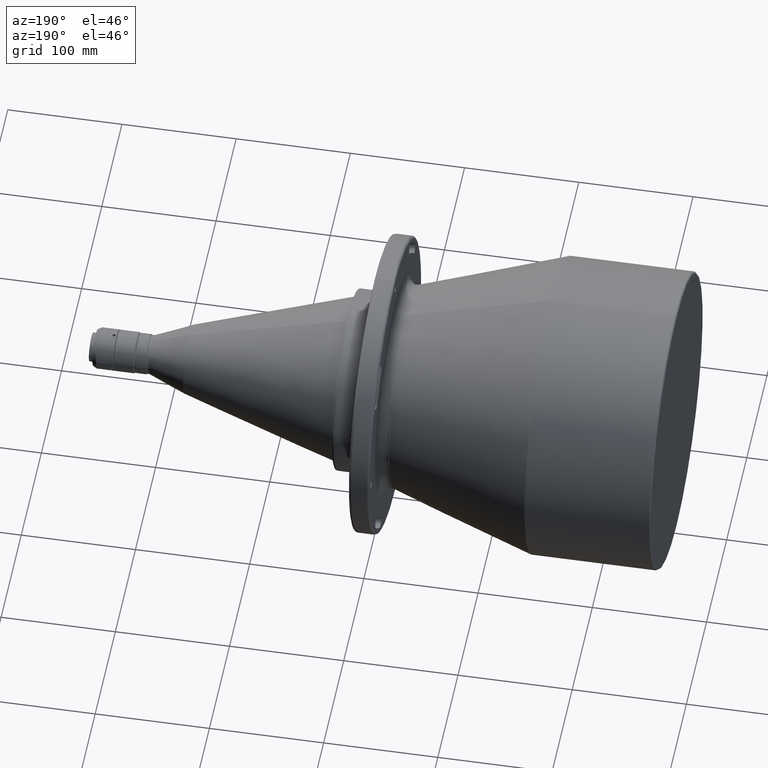
[diagram: clean part render]
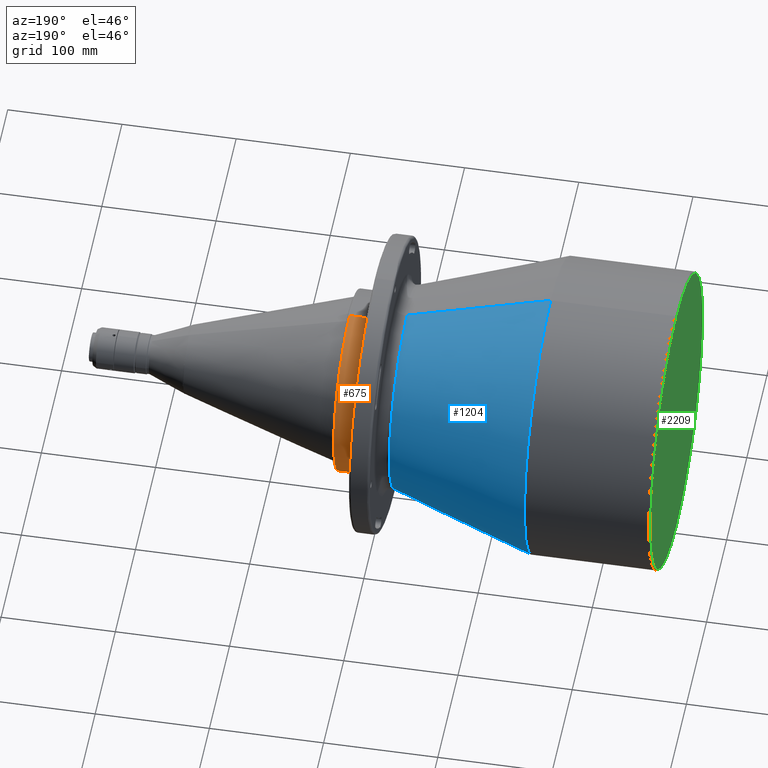
[diagram: same view with three faces highlighted in distinct colors, each labeled with its STEP entity id]
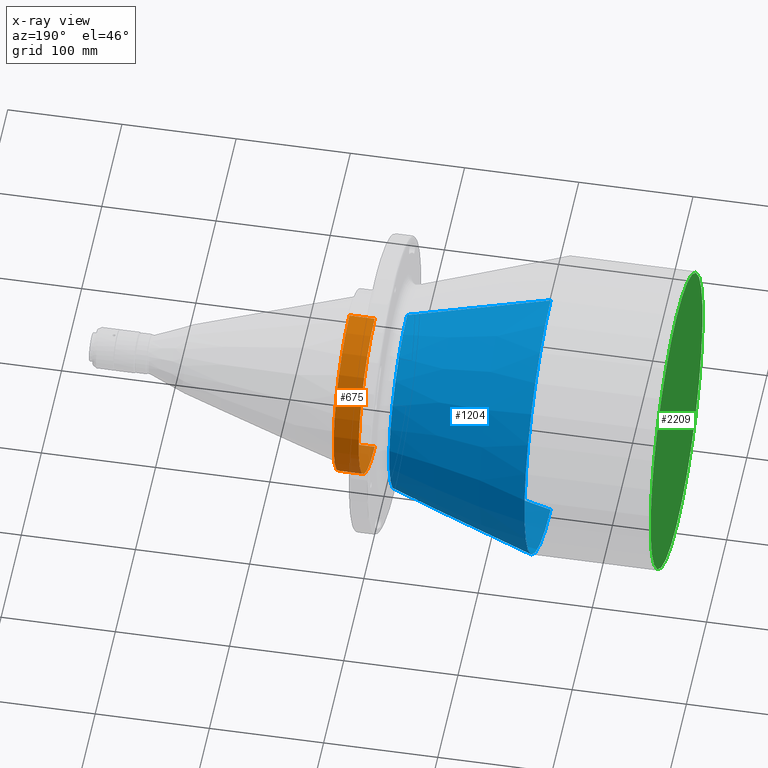
[diagram: x-ray of the same camera — body ghosted, the three highlighted faces saturated]
A machine part, auxiliary view with three faces highlighted in distinct colors.
The next image is the same camera in x-ray (body ghosted, the three faces saturated) — at least one of them is partly hidden behind the body in this view.
Their STEP definitions:

[orange] entity #675 — the highlighted cylindrical surface (partial cylindrical patch) has radius 79.5 mm, axis along (-1, 0, 0).
#181 = EDGE_CURVE ( 'NONE', #2694, #434, #974, .T. ) ;
#204 = CARTESIAN_POINT ( 'NONE',  ( 30.10000000000000100, 9.735942053221458500E-015, -79.50000000000000000 ) ) ;
#213 = DIRECTION ( 'NONE',  ( -1.000000000000000000, 0.0000000000000000000, 0.0000000000000000000 ) ) ;
#405 = CIRCLE ( 'NONE', #926, 79.50000000000000000 ) ;
#434 = VERTEX_POINT ( 'NONE', #2633 ) ;
#476 = ORIENTED_EDGE ( 'NONE', *, *, #597, .T. ) ;
#572 = EDGE_LOOP ( 'NONE', ( #989, #476, #1736, #714 ) ) ;
#597 = EDGE_CURVE ( 'NONE', #2694, #1147, #1129, .T. ) ;
#675 = ADVANCED_FACE ( 'NONE', ( #2018 ), #1867, .T. ) ;
#714 = ORIENTED_EDGE ( 'NONE', *, *, #2158, .F. ) ;
#861 = CARTESIAN_POINT ( 'NONE',  ( 30.10000000000000100, 0.0000000000000000000, 0.0000000000000000000 ) ) ;
#926 = AXIS2_PLACEMENT_3D ( 'NONE', #2405, #2670, #2706 ) ;
#937 = CARTESIAN_POINT ( 'NONE',  ( 30.10000000000000100, 0.0000000000000000000, 79.50000000000000000 ) ) ;
#974 = CIRCLE ( 'NONE', #2933, 79.49999999999998600 ) ;
#989 = ORIENTED_EDGE ( 'NONE', *, *, #181, .F. ) ;
#1129 = LINE ( 'NONE', #204, #1679 ) ;
#1147 = VERTEX_POINT ( 'NONE', #1864 ) ;
#1276 = EDGE_CURVE ( 'NONE', #1147, #2636, #405, .T. ) ;
#1375 = DIRECTION ( 'NONE',  ( -1.000000000000000000, 0.0000000000000000000, 0.0000000000000000000 ) ) ;
#1582 = DIRECTION ( 'NONE',  ( 0.0000000000000000000, 0.0000000000000000000, 1.000000000000000000 ) ) ;
#1644 = VECTOR ( 'NONE', #213, 1000.000000000000000 ) ;
#1679 = VECTOR ( 'NONE', #2894, 1000.000000000000000 ) ;
#1736 = ORIENTED_EDGE ( 'NONE', *, *, #1276, .T. ) ;
#1820 = CARTESIAN_POINT ( 'NONE',  ( 8.099999999999996100, 0.0000000000000000000, 79.50000000000000000 ) ) ;
#1864 = CARTESIAN_POINT ( 'NONE',  ( 8.099999999999996100, 9.735942053221458500E-015, -79.50000000000000000 ) ) ;
#1867 = CYLINDRICAL_SURFACE ( 'NONE', #2310, 79.50000000000000000 ) ;
#1983 = DIRECTION ( 'NONE',  ( 1.000000000000000000, -0.0000000000000000000, -0.0000000000000000000 ) ) ;
#2018 = FACE_OUTER_BOUND ( 'NONE', #572, .T. ) ;
#2158 = EDGE_CURVE ( 'NONE', #434, #2636, #2945, .T. ) ;
#2310 = AXIS2_PLACEMENT_3D ( 'NONE', #861, #1375, #1582 ) ;
#2405 = CARTESIAN_POINT ( 'NONE',  ( 8.099999999999996100, 0.0000000000000000000, 0.0000000000000000000 ) ) ;
#2526 = DIRECTION ( 'NONE',  ( -1.745633686517542100E-016, 8.881784197001252300E-016, 1.000000000000000000 ) ) ;
#2633 = CARTESIAN_POINT ( 'NONE',  ( 30.10000000000001600, -3.569296730042138000E-009, 79.50000000007962300 ) ) ;
#2636 = VERTEX_POINT ( 'NONE', #1820 ) ;
#2670 = DIRECTION ( 'NONE',  ( 1.000000000000000000, -0.0000000000000000000, -0.0000000000000000000 ) ) ;
#2694 = VERTEX_POINT ( 'NONE', #3178 ) ;
#2706 = DIRECTION ( 'NONE',  ( 0.0000000000000000000, 0.0000000000000000000, 1.000000000000000000 ) ) ;
#2894 = DIRECTION ( 'NONE',  ( -1.000000000000000000, 0.0000000000000000000, 0.0000000000000000000 ) ) ;
#2933 = AXIS2_PLACEMENT_3D ( 'NONE', #3022, #1983, #2526 ) ;
#2945 = LINE ( 'NONE', #937, #1644 ) ;
#3022 = CARTESIAN_POINT ( 'NONE',  ( 30.10000000000001600, 0.0000000000000000000, 0.0000000000000000000 ) ) ;
#3178 = CARTESIAN_POINT ( 'NONE',  ( 30.10000000000001600, -2.445858385045323700E-008, -79.50000000007963800 ) ) ;

[blue] entity #1204 — the highlighted conical surface has half-angle 18 deg.
#10 = ORIENTED_EDGE ( 'NONE', *, *, #281, .F. ) ;
#72 = DIRECTION ( 'NONE',  ( 0.0000000000000000000, -1.000000000000000000, 0.0000000000000000000 ) ) ;
#73 = EDGE_CURVE ( 'NONE', #739, #585, #2544, .T. ) ;
#192 = CARTESIAN_POINT ( 'NONE',  ( -20.37213595500000100, 0.0000000000000000000, 0.0000000000000000000 ) ) ;
#251 = CARTESIAN_POINT ( 'NONE',  ( -20.37213595500000100, 1.091993496140308500E-014, -89.16803578800001200 ) ) ;
#281 = EDGE_CURVE ( 'NONE', #774, #585, #1088, .T. ) ;
#349 = DIRECTION ( 'NONE',  ( -1.000000000000000000, 0.0000000000000000000, 0.0000000000000000000 ) ) ;
#364 = DIRECTION ( 'NONE',  ( 6.407545200422027600E-016, 0.0000000000000000000, 1.000000000000000000 ) ) ;
#512 = ORIENTED_EDGE ( 'NONE', *, *, #2717, .F. ) ;
#525 = DIRECTION ( 'NONE',  ( -1.000000000000000000, -1.945454400366094100E-017, 0.0000000000000000000 ) ) ;
#581 = VERTEX_POINT ( 'NONE', #2411 ) ;
#585 = VERTEX_POINT ( 'NONE', #2695 ) ;
#667 = ORIENTED_EDGE ( 'NONE', *, *, #73, .T. ) ;
#738 = AXIS2_PLACEMENT_3D ( 'NONE', #2007, #525, #72 ) ;
#739 = VERTEX_POINT ( 'NONE', #1395 ) ;
#758 = AXIS2_PLACEMENT_3D ( 'NONE', #192, #1444, #1915 ) ;
#774 = VERTEX_POINT ( 'NONE', #3110 ) ;
#925 = CARTESIAN_POINT ( 'NONE',  ( -20.37213595500000100, 0.0000000000000000000, 89.16803578800001200 ) ) ;
#1013 = CIRCLE ( 'NONE', #738, 89.16803578876303500 ) ;
#1088 = CIRCLE ( 'NONE', #1320, 129.9510565159999900 ) ;
#1128 = LINE ( 'NONE', #925, #1369 ) ;
#1204 = ADVANCED_FACE ( 'NONE', ( #1214 ), #1562, .T. ) ;
#1214 = FACE_OUTER_BOUND ( 'NONE', #2911, .T. ) ;
#1320 = AXIS2_PLACEMENT_3D ( 'NONE', #1355, #349, #364 ) ;
#1355 = CARTESIAN_POINT ( 'NONE',  ( -145.8893674460001100, 0.0000000000000000000, 0.0000000000000000000 ) ) ;
#1369 = VECTOR ( 'NONE', #2191, 1000.000000000000000 ) ;
#1395 = CARTESIAN_POINT ( 'NONE',  ( -20.37213595544576300, -2.743300478114483500E-008, -89.16803578819077800 ) ) ;
#1444 = DIRECTION ( 'NONE',  ( -1.000000000000000000, 0.0000000000000000000, 0.0000000000000000000 ) ) ;
#1562 = CONICAL_SURFACE ( 'NONE', #758, 89.16803578800001200, 0.3141592653586111600 ) ;
#1915 = DIRECTION ( 'NONE',  ( 0.0000000000000000000, 0.0000000000000000000, 1.000000000000000000 ) ) ;
#1924 = EDGE_CURVE ( 'NONE', #581, #739, #1013, .T. ) ;
#2007 = CARTESIAN_POINT ( 'NONE',  ( -20.37213595678278500, 0.0000000000000000000, 0.0000000000000000000 ) ) ;
#2191 = DIRECTION ( 'NONE',  ( -0.9510565162952673300, 0.0000000000000000000, 0.3090169943745972900 ) ) ;
#2219 = DIRECTION ( 'NONE',  ( -0.9510565162952673300, 3.784366730429862400E-017, -0.3090169943745972900 ) ) ;
#2411 = CARTESIAN_POINT ( 'NONE',  ( -20.37213595566860400, -8.006721473267642600E-009, 89.16803578828616100 ) ) ;
#2544 = LINE ( 'NONE', #251, #3060 ) ;
#2695 = CARTESIAN_POINT ( 'NONE',  ( -145.8893674457990000, -1.332670361531058900E-008, -129.9510565161257600 ) ) ;
#2717 = EDGE_CURVE ( 'NONE', #581, #774, #1128, .T. ) ;
#2911 = EDGE_LOOP ( 'NONE', ( #3146, #667, #10, #512 ) ) ;
#3060 = VECTOR ( 'NONE', #2219, 1000.000000000000000 ) ;
#3110 = CARTESIAN_POINT ( 'NONE',  ( -145.8893674458325300, -5.834388441359497200E-009, 129.9510565161047900 ) ) ;
#3146 = ORIENTED_EDGE ( 'NONE', *, *, #1924, .T. ) ;

[green] entity #2209 — the highlighted planar face has unit normal (1, -0, 0).
#203 = EDGE_CURVE ( 'NONE', #961, #656, #908, .T. ) ;
#287 = CARTESIAN_POINT ( 'NONE',  ( -256.1999999999999900, 1.585917604895822700E-014, 129.0000000000000000 ) ) ;
#347 = DIRECTION ( 'NONE',  ( 0.0000000000000000000, 0.0000000000000000000, -1.000000000000000000 ) ) ;
#471 = DIRECTION ( 'NONE',  ( 0.0000000000000000000, 0.0000000000000000000, -1.000000000000000000 ) ) ;
#540 = CARTESIAN_POINT ( 'NONE',  ( -256.1999999999999900, 0.0000000000000000000, -129.0000000000000000 ) ) ;
#603 = AXIS2_PLACEMENT_3D ( 'NONE', #1315, #1544, #2025 ) ;
#656 = VERTEX_POINT ( 'NONE', #287 ) ;
#805 = EDGE_LOOP ( 'NONE', ( #2759, #1464 ) ) ;
#908 = CIRCLE ( 'NONE', #603, 129.0000000000000000 ) ;
#961 = VERTEX_POINT ( 'NONE', #540 ) ;
#1315 = CARTESIAN_POINT ( 'NONE',  ( -256.1999999999999900, 0.0000000000000000000, 0.0000000000000000000 ) ) ;
#1360 = DIRECTION ( 'NONE',  ( -1.000000000000000000, -0.0000000000000000000, -0.0000000000000000000 ) ) ;
#1464 = ORIENTED_EDGE ( 'NONE', *, *, #1611, .T. ) ;
#1544 = DIRECTION ( 'NONE',  ( -1.000000000000000000, -0.0000000000000000000, -0.0000000000000000000 ) ) ;
#1558 = AXIS2_PLACEMENT_3D ( 'NONE', #1578, #1360, #347 ) ;
#1578 = CARTESIAN_POINT ( 'NONE',  ( -256.1999999999999900, 0.0000000000000000000, 0.0000000000000000000 ) ) ;
#1611 = EDGE_CURVE ( 'NONE', #656, #961, #2465, .T. ) ;
#1704 = DIRECTION ( 'NONE',  ( 1.000000000000000000, -0.0000000000000000000, 0.0000000000000000000 ) ) ;
#1854 = AXIS2_PLACEMENT_3D ( 'NONE', #2165, #1704, #471 ) ;
#2025 = DIRECTION ( 'NONE',  ( 0.0000000000000000000, 0.0000000000000000000, -1.000000000000000000 ) ) ;
#2165 = CARTESIAN_POINT ( 'NONE',  ( -256.1999999999999900, -130.5480000000000000, 130.5480000000000000 ) ) ;
#2209 = ADVANCED_FACE ( 'NONE', ( #3059 ), #3228, .F. ) ;
#2465 = CIRCLE ( 'NONE', #1558, 129.0000000000000000 ) ;
#2759 = ORIENTED_EDGE ( 'NONE', *, *, #203, .T. ) ;
#3059 = FACE_OUTER_BOUND ( 'NONE', #805, .T. ) ;
#3228 = PLANE ( 'NONE',  #1854 ) ;